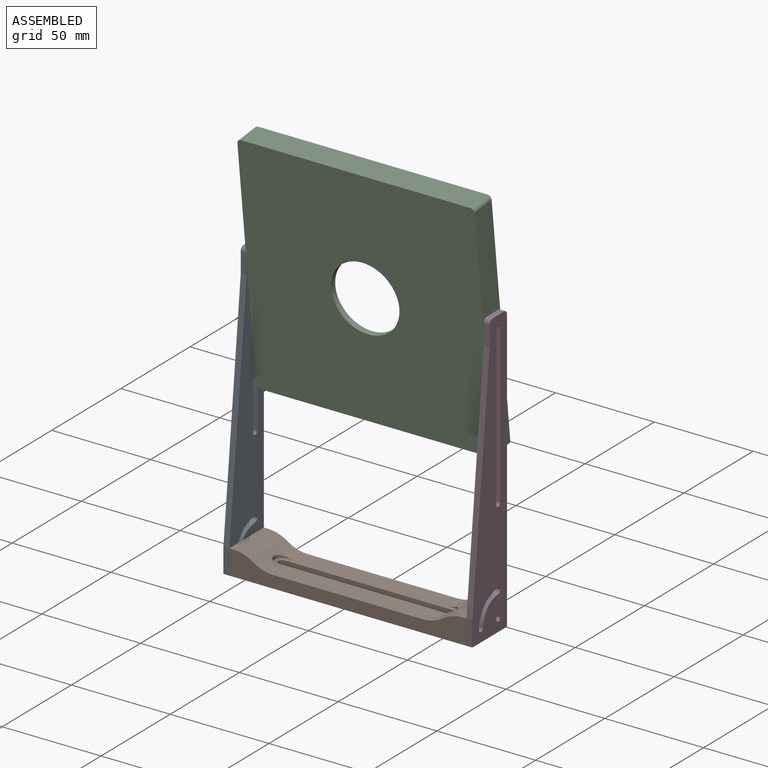
[diagram: assembled view]
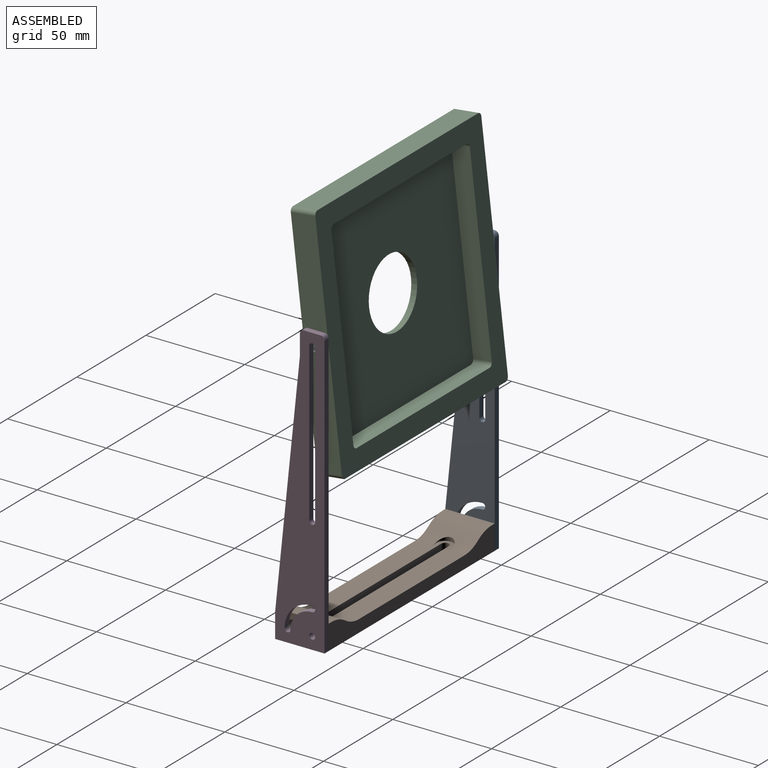
[diagram: assembled view, second angle]
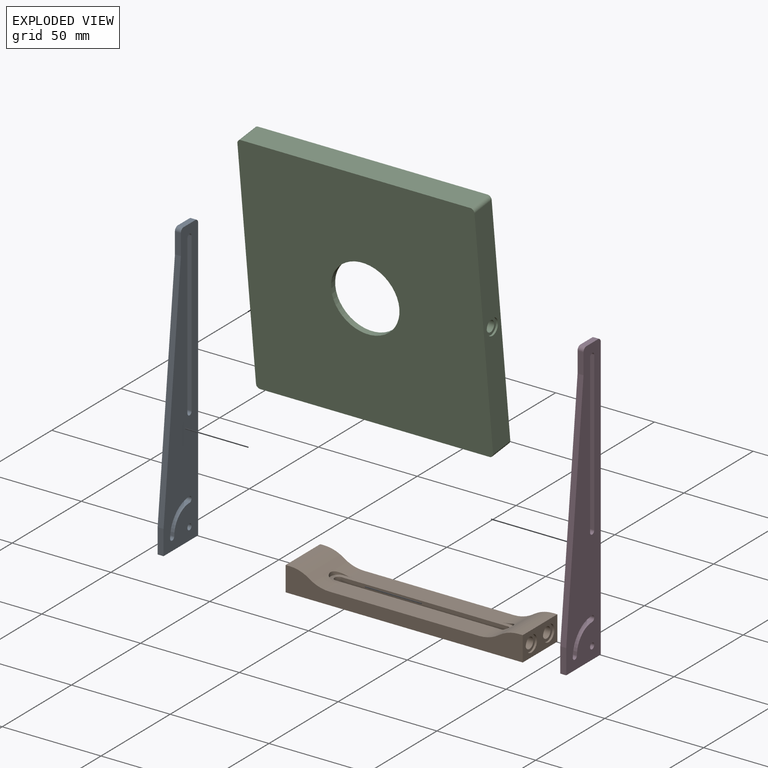
[diagram: exploded view]
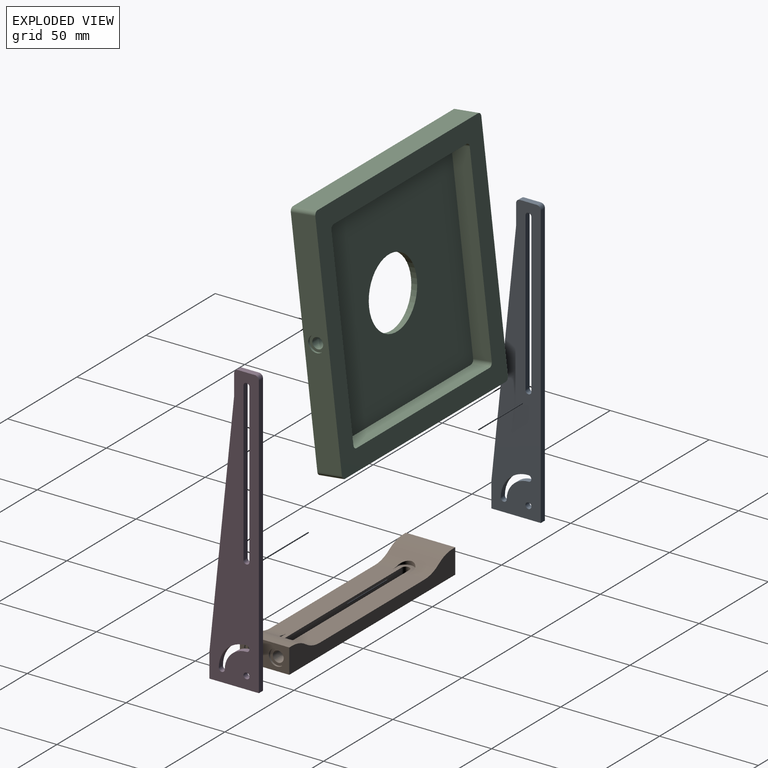
[diagram: exploded view, second angle]
ASSEMBLY  parts=4 mates=4
PART A: 21 faces, bbox 145x25x3 mm
  f0: plane 8.5x3mm, normal (1,0,0), area 25.5mm2, adj f1,f18,f19,f20
  f1: cylinder r=2mm len=3mm, axis (0,0,-1), area 9.4mm2, adj f0,f2,f19,f20
  f2: plane 10.4x3mm, normal (0,1,0), area 31.2mm2, adj f1,f3,f19,f20
  f3: cylinder r=2mm len=3mm, axis (0,0,-1), area 0.6mm2, adj f2,f4,f19,f20
  f4: plane 119.79x12.48mm, normal (0.1,0.99,0), area 361.3mm2, adj f3,f5,f19,f20
  f5: cylinder r=2mm len=3mm, axis (0,0,-1), area 0.6mm2, adj f4,f6,f19,f20
  f6: plane 12.4x3mm, normal (0,1,0), area 37.2mm2, adj f5,f7,f19,f20
  f7: plane 25x3mm, normal (-1,0,0), area 75mm2, adj f6,f8,f19,f20
  f8: plane 143x3mm, normal (0,-1,0), area 429mm2, adj f7,f18,f19,f20
  f9: cylinder r=1.5mm len=3mm, axis (0,0,-1), area 14.1mm2, adj f10,f16,f19,f20
  f10: cylinder r=14mm len=14mm, axis (0,0,-1), area 66mm2, adj f9,f11,f19,f20
  f11: cylinder r=1.5mm len=3mm, axis (0,0,-1), area 14.1mm2, adj f10,f16,f19,f20
  f12: cylinder r=1.5mm len=3mm, axis (0,0,-1), area 14.1mm2, adj f13,f17,f19,f20
  f13: plane 80x3mm, normal (0,1,0), area 240mm2, adj f12,f14,f19,f20
  f14: cylinder r=1.5mm len=3mm, axis (0,0,-1), area 14.1mm2, adj f13,f17,f19,f20
  f15: cylinder r=1.5mm len=3mm, axis (0,0,-1), area 28.3mm2, adj f19,f20
  f16: cylinder r=11mm len=11mm, axis (0,0,-1), area 51.8mm2, adj f9,f11,f19,f20
  f17: plane 80x3mm, normal (0,-1,0), area 240mm2, adj f12,f14,f19,f20
  f18: cylinder r=2mm len=3mm, axis (0,0,-1), area 9.4mm2, adj f0,f8,f19,f20
  f19: plane 145x25mm, normal (0,0,1), area 2396.9mm2, adj f0,f1,f2,f3,f4,f5,f6,f7
  f20: plane 145x25mm, normal (0,0,-1), area 2396.9mm2, adj f0,f1,f2,f3,f4,f5,f6,f7
PART B: 38 faces, bbox 120x25x12.5 mm
  f0: plane 25x2mm, normal (0,0,1), area 50mm2, adj f9,f11,f12,f35
  f1: plane 4x0.46mm, normal (0,-1,0), area 0.6mm2, adj f3,f33,f34
  f2: plane 4x0.46mm, normal (0,1,0), area 0.6mm2, adj f3,f33,f34
  f3: cylinder r=4.05mm len=8.1mm, axis (0,0,1), area 17mm2, adj f1,f2,f33,f34
  f4: plane 84x6.25mm, normal (0,-1,0), area 525mm2, adj f6,f7,f13,f33
  f5: plane 84x6.25mm, normal (0,1,0), area 525mm2, adj f6,f7,f13,f33
  f6: cylinder r=2mm len=6.25mm, axis (0,0,-1), area 39.3mm2, adj f4,f5,f13,f33
  f7: cylinder r=2mm len=6.25mm, axis (0,0,-1), area 39.3mm2, adj f4,f5,f13,f33
  f8: plane 25x2mm, normal (0,0,1), area 50mm2, adj f10,f11,f12,f36
  f9: plane 25x12.5mm, normal (1,0,0), area 206.9mm2, adj f0,f11,f12,f13,f14,f16
  f10: plane 25x12.5mm, normal (-1,0,0), area 206.9mm2, adj f8,f11,f12,f13,f22,f24
  f11: plane 120x12.5mm, normal (0,-1,0), area 900mm2, adj f0,f8,f9,f10,f13,f33,f34,f35
  f12: plane 120x12.5mm, normal (0,1,0), area 900mm2, adj f0,f8,f9,f10,f13,f33,f34,f35
  f13: plane 120x25mm, normal (0,0,-1), area 2651.4mm2, adj f4,f5,f6,f7,f9,f10,f11,f12
  f14: cylinder r=4.1mm len=8.2mm, axis (1,0,0), area 25.8mm2, adj f9,f15
  f15: plane 8.2x8.2mm, normal (1,0,0), area 29.1mm2, adj f14,f19
  f16: cylinder r=4.1mm len=8.2mm, axis (1,0,0), area 25.8mm2, adj f9,f17
  f17: plane 8.2x8.2mm, normal (1,0,0), area 29.1mm2, adj f16,f21
  f18: plane 5.5x5.5mm, normal (1,0,0), area 23.8mm2, adj f19
  f19: cylinder r=2.75mm len=7.2mm, axis (1,0,0), area 124.4mm2, adj f15,f18
  f20: plane 5.5x5.5mm, normal (1,0,0), area 23.8mm2, adj f21
  f21: cylinder r=2.75mm len=7.2mm, axis (1,0,0), area 124.4mm2, adj f17,f20
  f22: cylinder r=4.1mm len=8.2mm, axis (-1,0,0), area 25.8mm2, adj f10,f23
  f23: plane 8.2x8.2mm, normal (-1,0,0), area 29.1mm2, adj f22,f28
  f24: cylinder r=4.1mm len=8.2mm, axis (-1,0,0), area 25.8mm2, adj f10,f25
  f25: plane 8.2x8.2mm, normal (-1,0,0), area 29.1mm2, adj f24,f26
  f26: cylinder r=2.75mm len=7.2mm, axis (-1,0,0), area 124.4mm2, adj f25,f27
  f27: plane 5.5x5.5mm, normal (-1,0,0), area 23.8mm2, adj f26
  f28: cylinder r=2.75mm len=7.2mm, axis (-1,0,0), area 124.4mm2, adj f23,f29
  f29: plane 5.5x5.5mm, normal (-1,0,0), area 23.8mm2, adj f28
  f30: plane 4x0.46mm, normal (0,-1,0), area 0.6mm2, adj f31,f33,f37
  f31: cylinder r=4.05mm len=8.1mm, axis (0,0,1), area 17mm2, adj f30,f32,f33,f37
  f32: plane 4x0.46mm, normal (0,1,0), area 0.6mm2, adj f31,f33,f37
  f33: plane 92.1x25mm, normal (0,0,1), area 1667.8mm2, adj f1,f2,f3,f4,f5,f6,f7,f11
  f34: cylinder r=17.56mm len=25mm, axis (0,-1,0), area 206mm2, adj f1,f2,f3,f11,f12,f33,f35
  f35: cylinder r=17.56mm len=25mm, axis (0,-1,0), area 266mm2, adj f0,f11,f12,f34
  f36: cylinder r=17.56mm len=25mm, axis (0,-1,0), area 266mm2, adj f8,f11,f12,f37
  f37: cylinder r=17.56mm len=25mm, axis (0,-1,0), area 206mm2, adj f11,f12,f30,f31,f32,f33,f36
PART C: 28 faces, bbox 120x120x12.5 mm
  f0: cylinder r=17.28mm len=34.56mm, axis (0,0,-1), area 325.7mm2, adj f1,f2
  f1: plane 100x100mm, normal (0,0,1), area 9058.5mm2, adj f0,f3,f4,f5,f6,f7,f8,f9
  f2: plane 120x120mm, normal (0,0,-1), area 13458.5mm2, adj f0,f11,f12,f13,f14,f15,f16,f17
  f3: plane 96x9.5mm, normal (1,0,0), area 912mm2, adj f1,f7,f8,f19
  f4: plane 96x9.5mm, normal (0,1,0), area 912mm2, adj f1,f7,f10,f19
  f5: plane 96x9.5mm, normal (-1,0,0), area 912mm2, adj f1,f9,f10,f19
  f6: plane 96x9.5mm, normal (0,-1,0), area 912mm2, adj f1,f8,f9,f19
  f7: cylinder r=2mm len=9.5mm, axis (0,0,-1), area 29.8mm2, adj f1,f3,f4,f19
  f8: cylinder r=2mm len=9.5mm, axis (0,0,-1), area 29.8mm2, adj f1,f3,f6,f19
  f9: cylinder r=2mm len=9.5mm, axis (0,0,-1), area 29.8mm2, adj f1,f5,f6,f19
  f10: cylinder r=2mm len=9.5mm, axis (0,0,-1), area 29.8mm2, adj f1,f4,f5,f19
  f11: plane 116x12.5mm, normal (-1,0,0), area 1397.2mm2, adj f2,f12,f18,f19,f20
  f12: cylinder r=2mm len=12.5mm, axis (0,0,-1), area 39.3mm2, adj f2,f11,f13,f19
  f13: plane 116x12.5mm, normal (0,-1,0), area 1450mm2, adj f2,f12,f14,f19
  f14: cylinder r=2mm len=12.5mm, axis (0,0,-1), area 39.3mm2, adj f2,f13,f15,f19
  f15: plane 116x12.5mm, normal (1,0,0), area 1397.2mm2, adj f2,f14,f16,f19,f24
  f16: cylinder r=2mm len=12.5mm, axis (0,0,-1), area 39.3mm2, adj f2,f15,f17,f19
  f17: plane 116x12.5mm, normal (0,1,0), area 1450mm2, adj f2,f16,f18,f19
  f18: cylinder r=2mm len=12.5mm, axis (0,0,-1), area 39.3mm2, adj f2,f11,f17,f19
  f19: plane 120x120mm, normal (0,0,1), area 4400mm2, adj f3,f4,f5,f6,f7,f8,f9,f10
  f20: cylinder r=4.1mm len=8.2mm, axis (-1,0,0), area 25.8mm2, adj f11,f21
  f21: plane 8.2x8.2mm, normal (-1,0,0), area 29.1mm2, adj f20,f22
  f22: cylinder r=2.75mm len=7.2mm, axis (-1,0,0), area 124.4mm2, adj f21,f23
  f23: plane 5.5x5.5mm, normal (-1,0,0), area 23.8mm2, adj f22
  f24: cylinder r=4.1mm len=8.2mm, axis (1,0,0), area 25.8mm2, adj f15,f25
  f25: plane 8.2x8.2mm, normal (1,0,0), area 29.1mm2, adj f24,f26
  f26: cylinder r=2.75mm len=7.2mm, axis (1,0,0), area 124.4mm2, adj f25,f27
  f27: plane 5.5x5.5mm, normal (1,0,0), area 23.8mm2, adj f26
PART D: same geometry as A
PLACE A rot(axis=(-0.71,0,-0.71),180deg) t=(-6.46,44.14,-7.76)mm
PLACE B t=(-3.46,19.14,-7.76)mm fixed
PLACE C rot(axis=(-1,0,0),83.3deg) t=(-3.46,24.73,189.86)mm
PLACE D rot(axis=(-0.71,0,-0.71),180deg) t=(116.54,44.14,-7.76)mm
MATE revolute A.f10 <-> B.f14  axis (1,0,0) through (-3.46,37.89,-1.51)mm
MATE revolute D.f10 <-> B.f14  axis (-1,0,0) through (116.54,37.89,-1.51)mm
MATE pin_slot C.f20 <-> A.f12  axis (-1,0,0) through (-3.46,37.89,130.99)mm
MATE pin_slot C.f20 <-> D.f12  axis (1,0,0) through (116.54,37.89,130.99)mm
